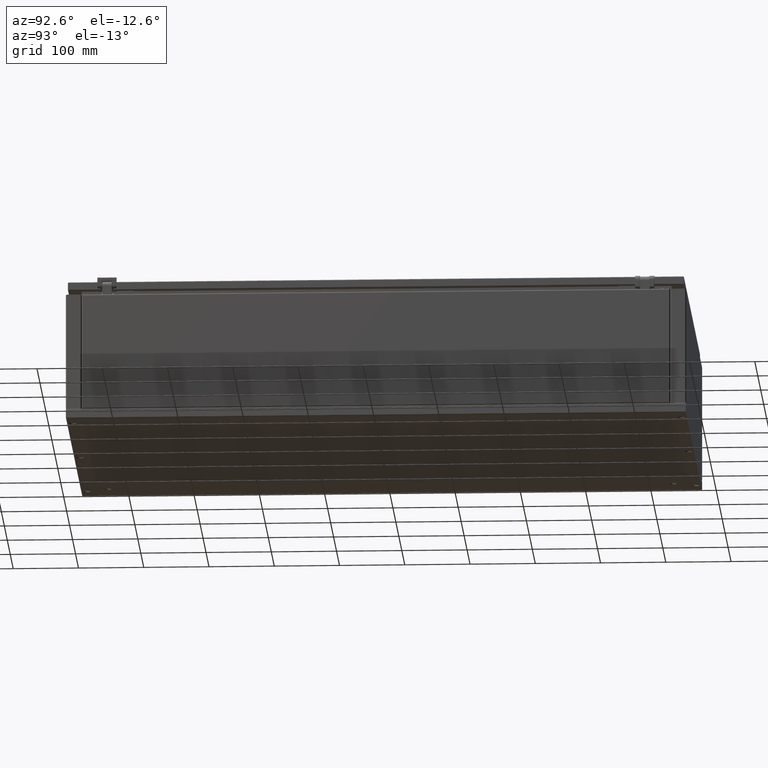
[diagram: clean part render]
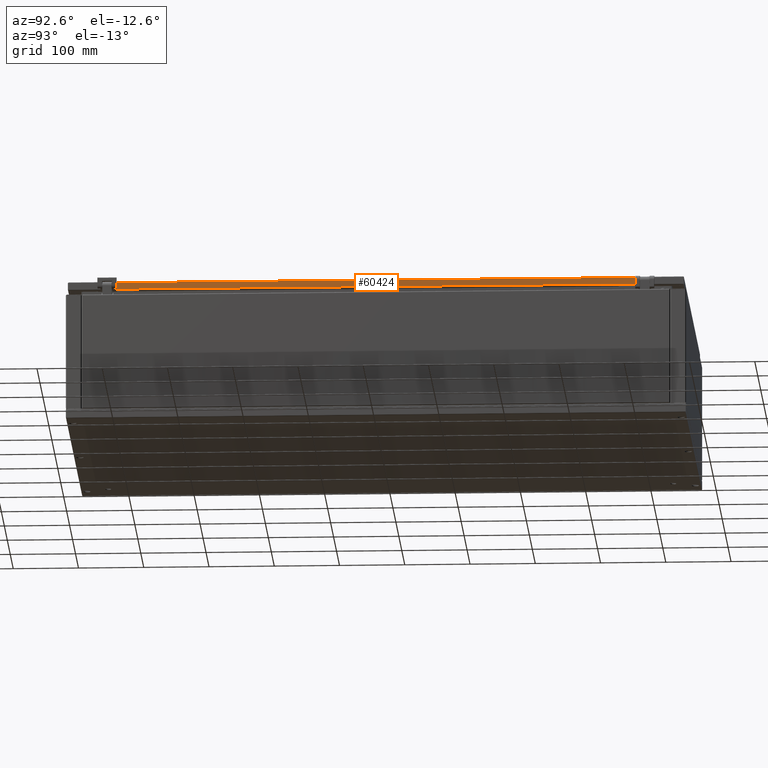
[diagram: same view with one face highlighted and labeled with its STEP entity id]
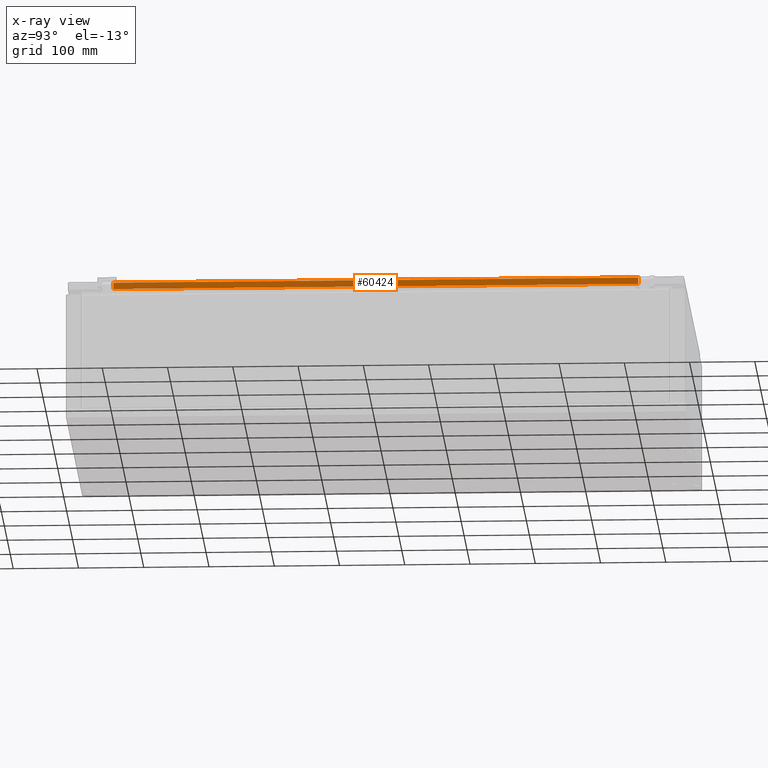
[diagram: x-ray of the same camera — body ghosted, the highlighted face saturated]
A machine part, auxiliary view. The second image highlights one B-rep face of the part: STEP entity #60424.
The next image is the same camera in x-ray: the body ghosted, the highlighted face saturated — about 0% of this face is hidden behind the body in this view.
In plain terms, the highlighted planar face has unit normal (-1, 0, 0).
Its self-contained STEP definition (entity closure, byte-faithful):
#3791 = VERTEX_POINT ( 'NONE', #35663 ) ;
#7861 = AXIS2_PLACEMENT_3D ( 'NONE', #99910, #93130, #93479 ) ;
#9685 = EDGE_CURVE ( 'NONE', #39459, #3791, #89021, .T. ) ;
#10698 = EDGE_CURVE ( 'NONE', #3791, #37554, #19717, .T. ) ;
#13709 = CARTESIAN_POINT ( 'NONE',  ( 271.9999999999104700, 401.8999999999870200, 200.0974750000050100 ) ) ;
#13864 = CARTESIAN_POINT ( 'NONE',  ( 271.9999999999104700, 401.8999999999870200, 201.6000000000050000 ) ) ;
#19111 = CARTESIAN_POINT ( 'NONE',  ( 271.9999999999045000, -470.7464466094199900, 201.5999999999999900 ) ) ;
#19717 = LINE ( 'NONE', #94267, #91131 ) ;
#20711 = VECTOR ( 'NONE', #96234, 1000.000000000000000 ) ;
#26739 = LINE ( 'NONE', #19111, #20711 ) ;
#33714 = ORIENTED_EDGE ( 'NONE', *, *, #10698, .F. ) ;
#35663 = CARTESIAN_POINT ( 'NONE',  ( 271.9999999999045000, -402.1000000000129800, 211.6000000000000200 ) ) ;
#37554 = VERTEX_POINT ( 'NONE', #42974 ) ;
#39459 = VERTEX_POINT ( 'NONE', #96062 ) ;
#42336 = ORIENTED_EDGE ( 'NONE', *, *, #83422, .T. ) ;
#42974 = CARTESIAN_POINT ( 'NONE',  ( 271.9999999999104700, 401.8999999999870200, 211.6000000000055100 ) ) ;
#44590 = DIRECTION ( 'NONE',  ( 1.210143096841416100E-014, -5.928675758366620800E-015, 1.000000000000000000 ) ) ;
#54019 = PLANE ( 'NONE',  #7861 ) ;
#59089 = LINE ( 'NONE', #13709, #80869 ) ;
#60424 = ADVANCED_FACE ( 'NONE', ( #99964 ), #54019, .F. ) ;
#65090 = EDGE_CURVE ( 'NONE', #78351, #37554, #59089, .T. ) ;
#67036 = ORIENTED_EDGE ( 'NONE', *, *, #9685, .F. ) ;
#70015 = ORIENTED_EDGE ( 'NONE', *, *, #65090, .T. ) ;
#70988 = DIRECTION ( 'NONE',  ( 7.438982840440360600E-015, 1.000000000000000000, 5.928675758366530900E-015 ) ) ;
#71999 = DIRECTION ( 'NONE',  ( 1.210143096841416100E-014, -5.928675758366620800E-015, 1.000000000000000000 ) ) ;
#75748 = VECTOR ( 'NONE', #71999, 1000.000000000000000 ) ;
#78351 = VERTEX_POINT ( 'NONE', #13864 ) ;
#80869 = VECTOR ( 'NONE', #44590, 1000.000000000000000 ) ;
#83422 = EDGE_CURVE ( 'NONE', #39459, #78351, #26739, .T. ) ;
#89021 = LINE ( 'NONE', #94925, #75748 ) ;
#91131 = VECTOR ( 'NONE', #70988, 1000.000000000000000 ) ;
#93130 = DIRECTION ( 'NONE',  ( -1.000000000000000000, 7.438982840440311700E-015, 7.475501699142724900E-015 ) ) ;
#93479 = DIRECTION ( 'NONE',  ( 7.475501699142680700E-015, -5.928675758366590800E-015, 1.000000000000000000 ) ) ;
#93896 = EDGE_LOOP ( 'NONE', ( #33714, #67036, #42336, #70015 ) ) ;
#94267 = CARTESIAN_POINT ( 'NONE',  ( 271.9999999999114900, 471.8999999999870200, 211.6000000000055100 ) ) ;
#94925 = CARTESIAN_POINT ( 'NONE',  ( 271.9999999999045000, -402.1000000000129800, 200.0974750000004900 ) ) ;
#96062 = CARTESIAN_POINT ( 'NONE',  ( 271.9999999999045000, -402.1000000000129800, 201.5999999999999900 ) ) ;
#96234 = DIRECTION ( 'NONE',  ( 7.438982840440360600E-015, 1.000000000000000000, 5.928675758366530900E-015 ) ) ;
#99910 = CARTESIAN_POINT ( 'NONE',  ( 271.9999999999079700, -0.1000000000131700000, 212.1000000000040000 ) ) ;
#99964 = FACE_OUTER_BOUND ( 'NONE', #93896, .T. ) ;